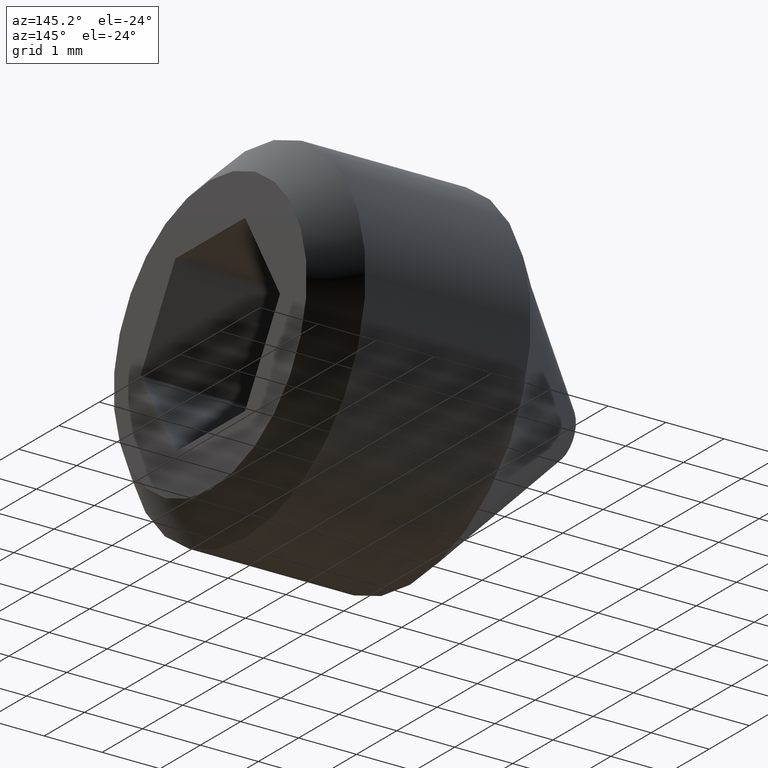
[diagram: clean part render]
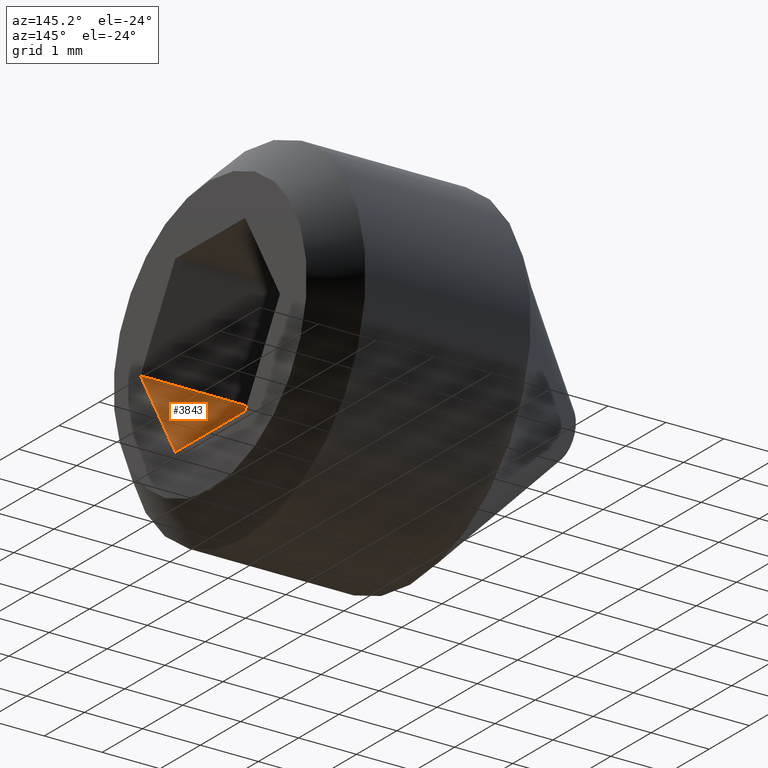
[diagram: same view with one face highlighted and labeled with its STEP entity id]
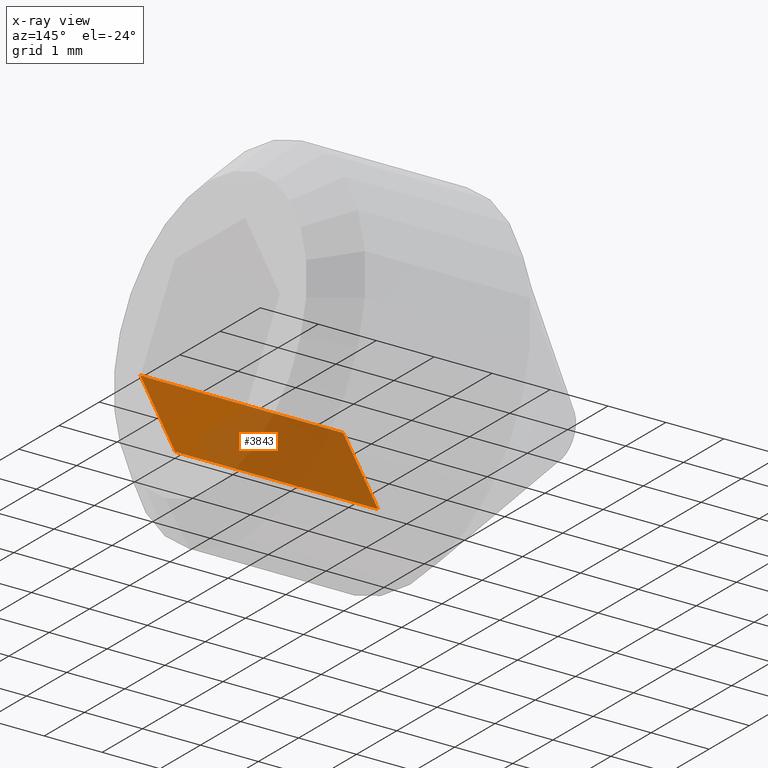
[diagram: x-ray of the same camera — body ghosted, the highlighted face saturated]
A machine part, auxiliary view. The second image highlights one B-rep face of the part: STEP entity #3843.
The next image is the same camera in x-ray: the body ghosted, the highlighted face saturated — about 70% of this face is hidden behind the body in this view.
In plain terms, the highlighted planar face has unit normal (0, -0.866, -0.5).
Its self-contained STEP definition (entity closure, byte-faithful):
#356 = CARTESIAN_POINT ( 'NONE',  ( 2.500000000000000000, -1.732050807568877000, 2.423462082778660800E-016 ) ) ;
#427 = CARTESIAN_POINT ( 'NONE',  ( 2.500000000000000000, -1.732050807568877000, 2.423462082778660800E-016 ) ) ;
#485 = LINE ( 'NONE', #1594, #8790 ) ;
#523 = EDGE_LOOP ( 'NONE', ( #8952, #6261, #2855, #8103 ) ) ;
#635 = CARTESIAN_POINT ( 'NONE',  ( 2.500000000000000000, -0.8660254037844388200, -1.500000000000000000 ) ) ;
#1018 = EDGE_CURVE ( 'NONE', #6122, #8188, #5863, .T. ) ;
#1021 = DIRECTION ( 'NONE',  ( 3.061515884555941900E-017, -0.8660254037844388200, -0.4999999999999997800 ) ) ;
#1250 = DIRECTION ( 'NONE',  ( 0.0000000000000000000, 0.4999999999999997200, -0.8660254037844388200 ) ) ;
#1594 = CARTESIAN_POINT ( 'NONE',  ( 6.000000000000000000, -1.732050807568877000, 4.566523201967821500E-016 ) ) ;
#2773 = EDGE_CURVE ( 'NONE', #7934, #8188, #485, .T. ) ;
#2855 = ORIENTED_EDGE ( 'NONE', *, *, #6401, .F. ) ;
#2945 = LINE ( 'NONE', #7166, #9310 ) ;
#3843 = ADVANCED_FACE ( 'NONE', ( #7155 ), #8499, .F. ) ;
#5190 = VERTEX_POINT ( 'NONE', #356 ) ;
#5437 = VECTOR ( 'NONE', #1250, 1000.000000000000100 ) ;
#5863 = LINE ( 'NONE', #635, #6256 ) ;
#6014 = CARTESIAN_POINT ( 'NONE',  ( 2.500000000000000000, -1.732050807568877000, 2.423462082778660800E-016 ) ) ;
#6122 = VERTEX_POINT ( 'NONE', #6325 ) ;
#6141 = EDGE_CURVE ( 'NONE', #5190, #7934, #2945, .T. ) ;
#6256 = VECTOR ( 'NONE', #6606, 1000.000000000000000 ) ;
#6261 = ORIENTED_EDGE ( 'NONE', *, *, #1018, .F. ) ;
#6325 = CARTESIAN_POINT ( 'NONE',  ( 2.500000000000000000, -0.8660254037844388200, -1.500000000000000000 ) ) ;
#6397 = CARTESIAN_POINT ( 'NONE',  ( 6.000000000000000000, -0.8660254037844388200, -1.499999999999999800 ) ) ;
#6401 = EDGE_CURVE ( 'NONE', #5190, #6122, #10344, .T. ) ;
#6444 = DIRECTION ( 'NONE',  ( 1.000000000000000000, -0.0000000000000000000, 6.123031769111886300E-017 ) ) ;
#6606 = DIRECTION ( 'NONE',  ( 1.000000000000000000, -0.0000000000000000000, 6.123031769111886300E-017 ) ) ;
#7155 = FACE_OUTER_BOUND ( 'NONE', #523, .T. ) ;
#7166 = CARTESIAN_POINT ( 'NONE',  ( 2.500000000000000000, -1.732050807568877000, 2.423462082778660800E-016 ) ) ;
#7934 = VERTEX_POINT ( 'NONE', #10036 ) ;
#8065 = AXIS2_PLACEMENT_3D ( 'NONE', #6014, #1021, #10164 ) ;
#8103 = ORIENTED_EDGE ( 'NONE', *, *, #6141, .T. ) ;
#8188 = VERTEX_POINT ( 'NONE', #6397 ) ;
#8238 = DIRECTION ( 'NONE',  ( 0.0000000000000000000, 0.4999999999999997200, -0.8660254037844388200 ) ) ;
#8499 = PLANE ( 'NONE',  #8065 ) ;
#8790 = VECTOR ( 'NONE', #8238, 1000.000000000000100 ) ;
#8952 = ORIENTED_EDGE ( 'NONE', *, *, #2773, .T. ) ;
#9310 = VECTOR ( 'NONE', #6444, 1000.000000000000000 ) ;
#10036 = CARTESIAN_POINT ( 'NONE',  ( 6.000000000000000000, -1.732050807568877200, 5.421010862427522200E-016 ) ) ;
#10164 = DIRECTION ( 'NONE',  ( 0.0000000000000000000, 0.4999999999999997800, -0.8660254037844388200 ) ) ;
#10344 = LINE ( 'NONE', #427, #5437 ) ;